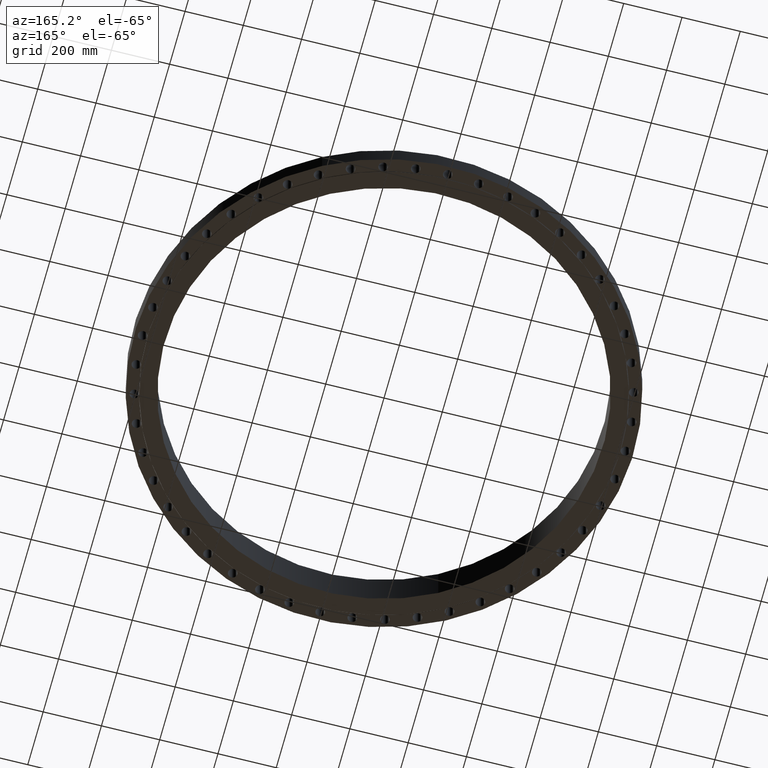
[diagram: clean part render]
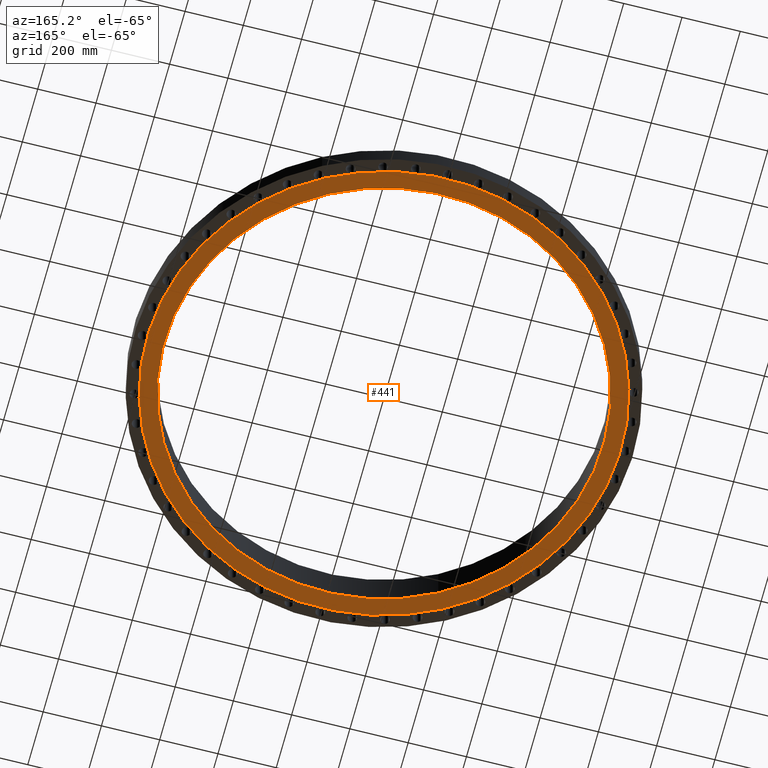
[diagram: same view with one face highlighted and labeled with its STEP entity id]
A machine part, auxiliary view. The second image highlights one B-rep face of the part: STEP entity #441.
In plain terms, the highlighted planar face has unit normal (0, 0, -1).
Its self-contained STEP definition (entity closure, byte-faithful):
#385=AXIS2_PLACEMENT_3D('Circle Axis2P3D',#383,#384,$) ;
#404=AXIS2_PLACEMENT_3D('Circle Axis2P3D',#402,#403,$) ;
#417=AXIS2_PLACEMENT_3D('Plane Axis2P3D',#414,#415,#416) ;
#421=AXIS2_PLACEMENT_3D('Circle Axis2P3D',#419,#420,$) ;
#430=AXIS2_PLACEMENT_3D('Circle Axis2P3D',#428,#429,$) ;
#380=CARTESIAN_POINT('Vertex',(14.2029815812,25.9983833961,-0.0625000000003)) ;
#383=CARTESIAN_POINT('Axis2P3D Location',(0.,0.,-0.0625000000003)) ;
#387=CARTESIAN_POINT('Vertex',(-14.2029815812,-25.9983833961,-0.0625000000003)) ;
#402=CARTESIAN_POINT('Axis2P3D Location',(0.,0.,-0.0625000000003)) ;
#414=CARTESIAN_POINT('Axis2P3D Location',(0.,29.6250000001,-0.0625000000003)) ;
#419=CARTESIAN_POINT('Axis2P3D Location',(0.,0.,-0.0625000000003)) ;
#423=CARTESIAN_POINT('Vertex',(-15.3416172354,-28.0826419806,-0.0625000000002)) ;
#425=CARTESIAN_POINT('Vertex',(15.3416172354,28.0826419806,-0.0625000000002)) ;
#428=CARTESIAN_POINT('Axis2P3D Location',(0.,0.,-0.0625000000003)) ;
#384=DIRECTION('Axis2P3D Direction',(0.,0.,-0.0393700787402)) ;
#403=DIRECTION('Axis2P3D Direction',(0.,0.,-0.0393700787402)) ;
#415=DIRECTION('Axis2P3D Direction',(0.,0.,-0.0393700787402)) ;
#416=DIRECTION('Axis2P3D XDirection',(0.0393700787402,0.,0.)) ;
#420=DIRECTION('Axis2P3D Direction',(0.,0.,-0.0393700787402)) ;
#429=DIRECTION('Axis2P3D Direction',(0.,0.,-0.0393700787402)) ;
#434=ORIENTED_EDGE('',*,*,#427,.T.) ;
#435=ORIENTED_EDGE('',*,*,#432,.T.) ;
#438=ORIENTED_EDGE('',*,*,#389,.F.) ;
#439=ORIENTED_EDGE('',*,*,#406,.F.) ;
#440=FACE_BOUND('',#437,.T.) ;
#441=ADVANCED_FACE('PartBody',(#436,#440),#418,.T.) ;
#386=CIRCLE('generated circle',#385,29.6250000001) ;
#405=CIRCLE('generated circle',#404,29.6250000001) ;
#422=CIRCLE('generated circle',#421,32.0000000001) ;
#431=CIRCLE('generated circle',#430,32.0000000001) ;
#389=EDGE_CURVE('',#381,#388,#386,.T.) ;
#406=EDGE_CURVE('',#388,#381,#405,.T.) ;
#427=EDGE_CURVE('',#424,#426,#422,.T.) ;
#432=EDGE_CURVE('',#426,#424,#431,.T.) ;
#433=EDGE_LOOP('',(#434,#435)) ;
#437=EDGE_LOOP('',(#438,#439)) ;
#436=FACE_OUTER_BOUND('',#433,.T.) ;
#418=PLANE('',#417) ;
#381=VERTEX_POINT('',#380) ;
#388=VERTEX_POINT('',#387) ;
#424=VERTEX_POINT('',#423) ;
#426=VERTEX_POINT('',#425) ;